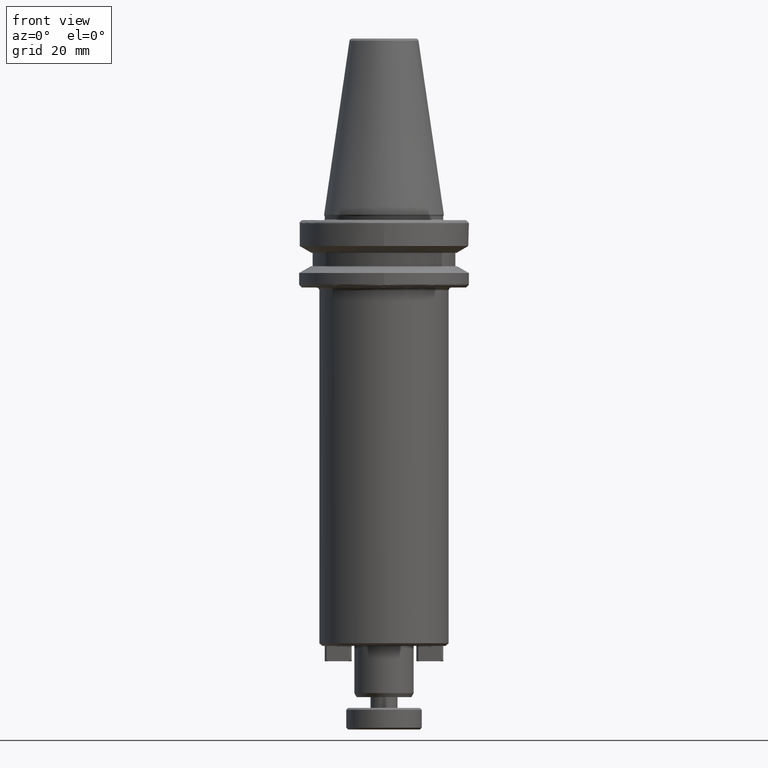
[diagram: clean part render]
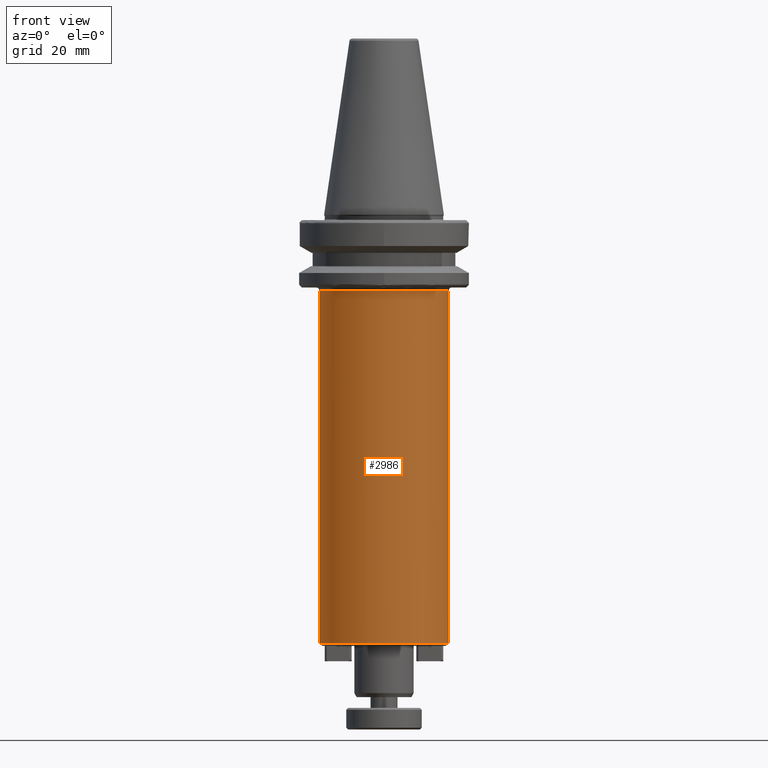
[diagram: same view with one face highlighted and labeled with its STEP entity id]
A machine part, front view. The second image highlights one B-rep face of the part: STEP entity #2986.
In plain terms, the highlighted cylindrical surface (partial cylindrical patch) has radius 24 mm, axis along (0, -0, 1).
Its self-contained STEP definition (entity closure, byte-faithful):
#23 = CIRCLE ( 'NONE', #3419, 24.00000000000000000 ) ;
#38 = ORIENTED_EDGE ( 'NONE', *, *, #2452, .T. ) ;
#51 = ORIENTED_EDGE ( 'NONE', *, *, #1432, .T. ) ;
#105 = DIRECTION ( 'NONE',  ( 0.0000000000000000000, 0.0000000000000000000, 1.000000000000000000 ) ) ;
#180 = ORIENTED_EDGE ( 'NONE', *, *, #1501, .T. ) ;
#295 = AXIS2_PLACEMENT_3D ( 'NONE', #1156, #1162, #2032 ) ;
#394 = CARTESIAN_POINT ( 'NONE',  ( 0.0000000000000000000, 0.0000000000000000000, -159.0000000000000000 ) ) ;
#446 = CIRCLE ( 'NONE', #295, 24.00000000000000000 ) ;
#630 = ORIENTED_EDGE ( 'NONE', *, *, #1876, .F. ) ;
#766 = AXIS2_PLACEMENT_3D ( 'NONE', #394, #3256, #3257 ) ;
#908 = VERTEX_POINT ( 'NONE', #3434 ) ;
#934 = AXIS2_PLACEMENT_3D ( 'NONE', #2445, #105, #2042 ) ;
#1133 = DIRECTION ( 'NONE',  ( 0.0000000000000000000, -0.0000000000000000000, 1.000000000000000000 ) ) ;
#1156 = CARTESIAN_POINT ( 'NONE',  ( 0.0000000000000000000, 0.0000000000000000000, -27.99999999999999600 ) ) ;
#1162 = DIRECTION ( 'NONE',  ( 0.0000000000000000000, 0.0000000000000000000, 1.000000000000000000 ) ) ;
#1428 = CARTESIAN_POINT ( 'NONE',  ( -24.00000000000000000, 2.939152317953647900E-015, -159.0000000000000300 ) ) ;
#1432 = EDGE_CURVE ( 'NONE', #908, #2538, #23, .T. ) ;
#1460 = EDGE_CURVE ( 'NONE', #2763, #2355, #3772, .T. ) ;
#1501 = EDGE_CURVE ( 'NONE', #2538, #3811, #1589, .T. ) ;
#1589 = LINE ( 'NONE', #2100, #3732 ) ;
#1752 = EDGE_LOOP ( 'NONE', ( #2541, #38, #51, #180, #630 ) ) ;
#1756 = CARTESIAN_POINT ( 'NONE',  ( -24.00000000005126600, -7.383723426551921600E-009, -27.99999999996670400 ) ) ;
#1831 = CARTESIAN_POINT ( 'NONE',  ( 24.00000000005126600, -1.077523541144796300E-009, -27.99999999999999600 ) ) ;
#1876 = EDGE_CURVE ( 'NONE', #2355, #3811, #446, .T. ) ;
#1919 = CIRCLE ( 'NONE', #934, 24.00000000000000000 ) ;
#2032 = DIRECTION ( 'NONE',  ( 1.000000000000000000, 0.0000000000000000000, -1.445602896647339200E-016 ) ) ;
#2042 = DIRECTION ( 'NONE',  ( 1.000000000000000000, 0.0000000000000000000, 1.156482317317871300E-015 ) ) ;
#2100 = CARTESIAN_POINT ( 'NONE',  ( 24.00000000000000000, 0.0000000000000000000, -159.0000000000000000 ) ) ;
#2105 = DIRECTION ( 'NONE',  ( 0.0000000000000000000, -0.0000000000000000000, 1.000000000000000000 ) ) ;
#2127 = CARTESIAN_POINT ( 'NONE',  ( -24.00000000000000000, 2.939152317953647900E-015, -159.0000000000000000 ) ) ;
#2129 = DIRECTION ( 'NONE',  ( 1.000000000000000000, 0.0000000000000000000, 1.156482317317871300E-015 ) ) ;
#2134 = DIRECTION ( 'NONE',  ( 0.0000000000000000000, 0.0000000000000000000, 1.000000000000000000 ) ) ;
#2138 = CARTESIAN_POINT ( 'NONE',  ( 0.0000000000000000000, 0.0000000000000000000, -159.0000000000000300 ) ) ;
#2355 = VERTEX_POINT ( 'NONE', #1756 ) ;
#2445 = CARTESIAN_POINT ( 'NONE',  ( 0.0000000000000000000, 0.0000000000000000000, -159.0000000000000300 ) ) ;
#2452 = EDGE_CURVE ( 'NONE', #2763, #908, #1919, .T. ) ;
#2484 = FACE_OUTER_BOUND ( 'NONE', #1752, .T. ) ;
#2504 = CYLINDRICAL_SURFACE ( 'NONE', #766, 24.00000000000000000 ) ;
#2538 = VERTEX_POINT ( 'NONE', #3018 ) ;
#2541 = ORIENTED_EDGE ( 'NONE', *, *, #1460, .F. ) ;
#2763 = VERTEX_POINT ( 'NONE', #1428 ) ;
#2986 = ADVANCED_FACE ( 'NONE', ( #2484 ), #2504, .T. ) ;
#3018 = CARTESIAN_POINT ( 'NONE',  ( 24.00000000000000000, 0.0000000000000000000, -159.0000000000000000 ) ) ;
#3256 = DIRECTION ( 'NONE',  ( 0.0000000000000000000, -0.0000000000000000000, 1.000000000000000000 ) ) ;
#3257 = DIRECTION ( 'NONE',  ( 1.000000000000000000, 0.0000000000000000000, 0.0000000000000000000 ) ) ;
#3419 = AXIS2_PLACEMENT_3D ( 'NONE', #2138, #2134, #2129 ) ;
#3434 = CARTESIAN_POINT ( 'NONE',  ( 0.0000000000000000000, -24.00000000000000000, -159.0000000000000300 ) ) ;
#3689 = VECTOR ( 'NONE', #1133, 1000.000000000000000 ) ;
#3732 = VECTOR ( 'NONE', #2105, 1000.000000000000000 ) ;
#3772 = LINE ( 'NONE', #2127, #3689 ) ;
#3811 = VERTEX_POINT ( 'NONE', #1831 ) ;